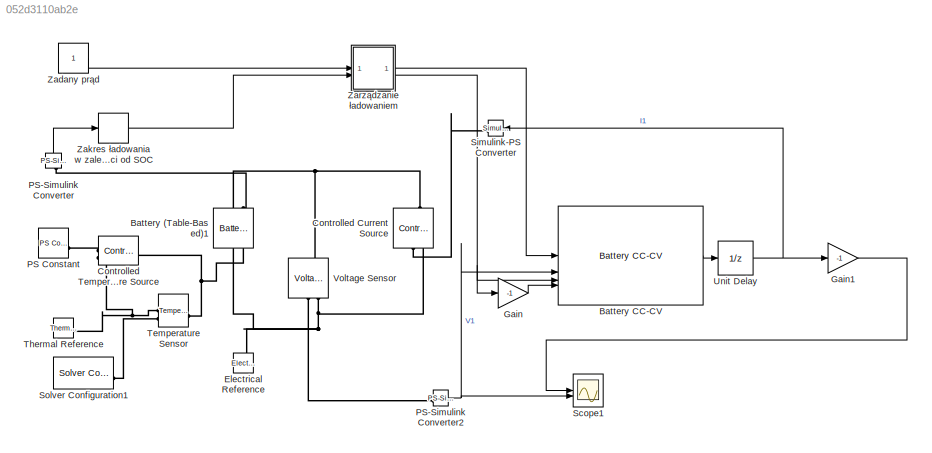
MODEL slx_052d3110ab2e
KIND model
CONFIG AbsTol = auto
CONFIG EnableMultiTasking = off
CONFIG FixedStep = auto
CONFIG MaxStep = auto
CONFIG MinStep = auto
CONFIG RelTol = 1e-3
CONFIG SampleTimeConstraint = Unconstrained
CONFIG SolverName = VariableStepAuto
CONFIG StartTime = 0.0
CONFIG StopTime = 90000
BLOCK [Reference] Battery (Table-Based)1  REF=batteryecm_lib/Battery
(Table-Based)
  AttributesFormatString = Molicel:INR_21700_P45B
  LibrarySourceBlock = batt_lib/Cells/Battery\n(Table-Based)
  NameLocation = right
  SourceBlock = batteryecm_lib/Battery\n(Table-Based)
  SourceType = Battery\n(Table-Based)
  Tag = {'toolbox/physmod/battery/shared_library/m/batteryecm_lib_parts';'Battery__Table_Based_/Molicel/INR_21700_P45B.xml'}
BLOCK [Reference] Battery CC-CV  REF=BatteryCurrentManagement/Battery CC-CV
  LibrarySourceBlock = batt_sl_lib/Current Management/Battery CC-CV
  SourceBlock = BatteryCurrentManagement/Battery CC-CV
  SourceType = Battery CC-CV
BLOCK [Reference] Controlled Current Source  REF=fl_lib/Electrical/Electrical Sources/Controlled Current
Source
  NameLocation = right
  SourceBlock = fl_lib/Electrical/Electrical Sources/Controlled Current\nSource
  SourceType = Controlled Current\nSource
BLOCK [Reference] Controlled Temperature Source  REF=fl_lib/Thermal/Thermal Sources/Controlled
Temperature Source
  SourceBlock = fl_lib/Thermal/Thermal Sources/Controlled\nTemperature Source
  SourceType = Controlled\nTemperature Source
BLOCK [Reference] Electrical Reference  REF=fl_lib/Electrical/Electrical Elements/Electrical Reference
  LibrarySourceBlock = ee_lib/Connectors &\nReferences/Electrical Reference
  NameLocation = right
  SourceBlock = fl_lib/Electrical/Electrical Elements/Electrical Reference
  SourceType = Electrical Reference
BLOCK [Gain] Gain
  Gain = -1
BLOCK [Gain] Gain1
  Gain = -1
BLOCK [Reference] PS Constant  REF=fl_lib/Physical Signals/Sources/PS Constant
  SourceBlock = fl_lib/Physical Signals/Sources/PS Constant
  SourceType = PS Constant
BLOCK [Reference] PS-Simulink Converter  REF=nesl_utility/PS-Simulink
Converter
  NameLocation = left
  SourceBlock = nesl_utility/PS-Simulink\nConverter
  SourceType = PS-Simulink\nConverter
BLOCK [Reference] PS-Simulink Converter2  REF=nesl_utility/PS-Simulink
Converter
  SourceBlock = nesl_utility/PS-Simulink\nConverter
  SourceType = PS-Simulink\nConverter
BLOCK [Scope] Scope1
  Floating = off
  NumInputPorts = 2
  ScopeSpecificationString = Simulink.scopes.TimeScopeBlockCfg('CurrentConfiguration', extmgr.ConfigurationSet(extmgr.Configuration('Core','General UI',true),extmgr.Configuration('Core','Source UI',true),extmgr.Configuration('Sources','WiredSimulink',true,'DataLoggingVariableName','ScopeData1'),extmgr.Configuration('Visuals','Time Domain',true,'SerializedDisplays',{struct('MinYLimReal','-1.25018','MaxYLimReal','1.25002','YLab...<+2434ch>
BLOCK [Reference] Simulink-PS Converter  REF=nesl_utility/Simulink-PS
Converter
  NameLocation = top
  SourceBlock = nesl_utility/Simulink-PS\nConverter
  SourceType = Simulink-PS\nConverter
BLOCK [Reference] Solver Configuration1  REF=nesl_utility/Solver
Configuration
  SourceBlock = nesl_utility/Solver\nConfiguration
  SourceType = Solver\nConfiguration
BLOCK [Reference] Temperature Sensor  REF=fl_lib/Thermal/Thermal Sensors/Temperature Sensor
  SourceBlock = fl_lib/Thermal/Thermal Sensors/Temperature Sensor
  SourceType = Temperature Sensor
BLOCK [Reference] Thermal Reference  REF=fl_lib/Thermal/Thermal Elements/Thermal Reference
  SourceBlock = fl_lib/Thermal/Thermal Elements/Thermal Reference
  SourceType = Thermal Reference
BLOCK [UnitDelay] Unit Delay
  HasFrameUpgradeWarning = on
  SampleTime = -1
BLOCK [Reference] Voltage Sensor  REF=fl_lib/Electrical/Electrical Sensors/Voltage Sensor
  NameLocation = right
  SourceBlock = fl_lib/Electrical/Electrical Sensors/Voltage Sensor
  SourceType = Voltage Sensor
BLOCK [Constant] Zadany prąd
BLOCK [Relay] Zakres ładowania w zależności od SOC
  NameLocation = top
  OffOutputValue = 1
  OffSwitchValue = 0.01
  OnOutputValue = 0
  OnSwitchValue = 0.98
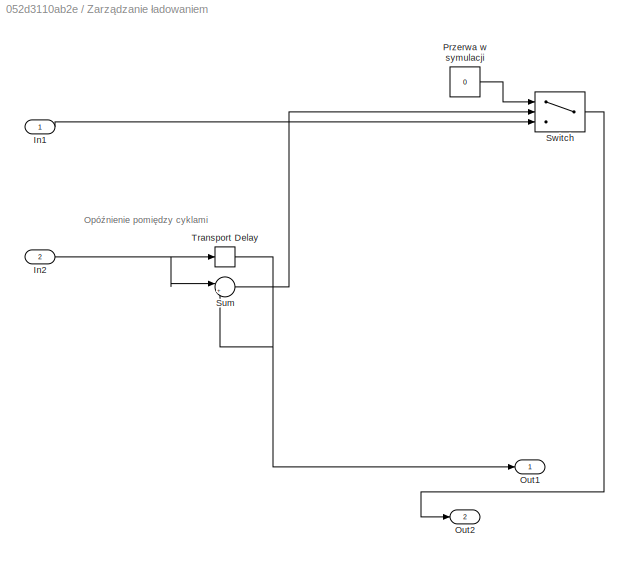
BLOCK [SubSystem] Zarządzanie ładowaniem
BLOCK [Inport] Zarządzanie ładowaniem/In1
BLOCK [Inport] Zarządzanie ładowaniem/In2
  Port = 2
BLOCK [Outport] Zarządzanie ładowaniem/Out1
BLOCK [Outport] Zarządzanie ładowaniem/Out2
  Port = 2
BLOCK [Constant] Zarządzanie ładowaniem/Przerwa w symulacji
  NameLocation = top
  Value = 0
BLOCK [Sum] Zarządzanie ładowaniem/Sum
  Inputs = |+-
BLOCK [Switch] Zarządzanie ładowaniem/Switch
  Criteria = u2 ~= 0
  InputSameDT = off
  SaturateOnIntegerOverflow = off
BLOCK [TransportDelay] Zarządzanie ładowaniem/Transport Delay
  DelayTime = 5000
ANNOTATION Zarządzanie ładowaniem: Opóźnienie pomiędzy cyklami
LINE Battery CC-CV:1 -> Unit Delay:1
LINE Gain1:1 -> Scope1:1
LINE Gain:1 -> Battery CC-CV:4
NET PS-Simulink Converter2:1 -> Battery CC-CV:2, Scope1:2
LINE PS-Simulink Converter:1 -> Zakres ładowania w zależności od SOC:1
NET Unit Delay:1 -> Gain1:1, Simulink-PS Converter:1
LINE Zadany prąd:1 -> Zarządzanie ładowaniem:1
LINE Zakres ładowania w zależności od SOC:1 -> Zarządzanie ładowaniem:2
LINE Zarządzanie ładowaniem/In1:1 -> Zarządzanie ładowaniem/Switch:3
NET Zarządzanie ładowaniem/In2:1 -> Zarządzanie ładowaniem/Sum:1, Zarządzanie ładowaniem/Transport Delay:1
LINE Zarządzanie ładowaniem/Przerwa w symulacji:1 -> Zarządzanie ładowaniem/Switch:1
LINE Zarządzanie ładowaniem/Sum:1 -> Zarządzanie ładowaniem/Switch:2
LINE Zarządzanie ładowaniem/Switch:1 -> Zarządzanie ładowaniem/Out2:1
NET Zarządzanie ładowaniem/Transport Delay:1 -> Zarządzanie ładowaniem/Out1:1, Zarządzanie ładowaniem/Sum:2
LINE Zarządzanie ładowaniem:1 -> Battery CC-CV:1
NET Zarządzanie ładowaniem:2 -> Battery CC-CV:3, Gain:1
PNET net1: Battery (Table-Based)1:LConn1 -- Controlled Current Source:LConn1 -- Voltage Sensor:LConn1
PLINE Battery (Table-Based)1:LConn2 -- PS-Simulink Converter:LConn1
PNET net2: Battery (Table-Based)1:RConn1 -- Controlled Current Source:RConn2 -- Electrical Reference:LConn1 -- Voltage Sensor:RConn2
PNET net3: Battery (Table-Based)1:RConn2 -- Controlled Temperature Source:LConn1 -- Temperature Sensor:LConn1
PLINE Controlled Current Source:RConn1 -- Simulink-PS Converter:RConn1
PLINE Controlled Temperature Source:RConn1 -- PS Constant:RConn1
PNET net4: Controlled Temperature Source:RConn2 -- Temperature Sensor:RConn1 -- Thermal Reference:LConn1
PLINE PS-Simulink Converter2:LConn1 -- Voltage Sensor:RConn1
PLINE Solver Configuration1:RConn1 -- Temperature Sensor:RConn2
note: NET lines group one-source signal fan-out (src -> all destinations, sorted); 1:1 wires keep LINE; PNET lines group multi-terminal physical nets as a canonical sorted terminal list (undirected conserving connections); 2-terminal nets keep the pairwise PLINE form
